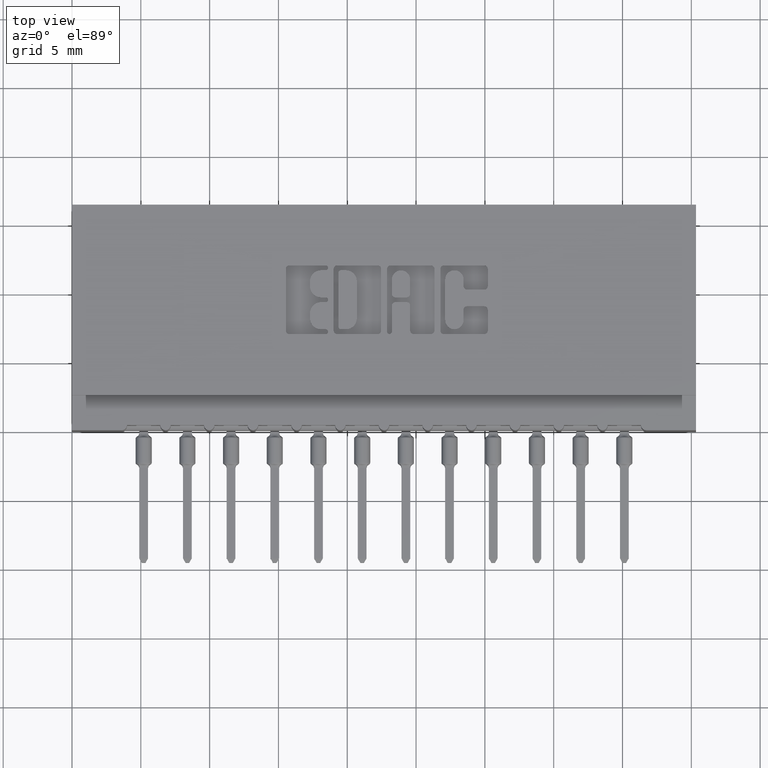
[diagram: clean part render]
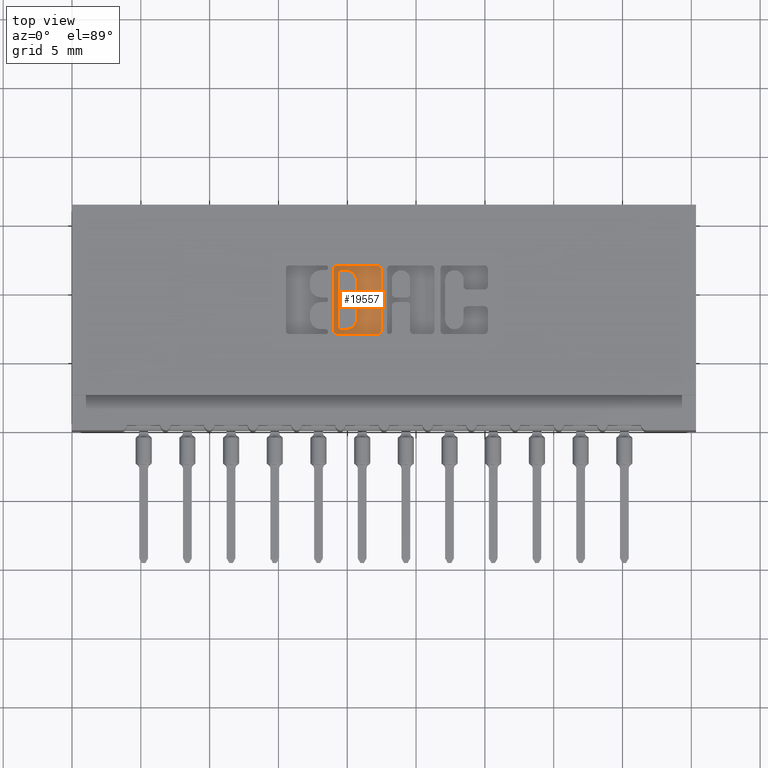
[diagram: same view with one face highlighted and labeled with its STEP entity id]
A machine part, top view. The second image highlights one B-rep face of the part: STEP entity #19557.
In plain terms, the highlighted planar face has unit normal (0, 0, 1).
Its self-contained STEP definition (entity closure, byte-faithful):
#28 = ORIENTED_EDGE ( 'NONE', *, *, #10768, .T. ) ;
#53 = DIRECTION ( 'NONE',  ( 1.000000000000000000, 0.0000000000000000000, 0.0000000000000000000 ) ) ;
#64 = CARTESIAN_POINT ( 'NONE',  ( 0.7484550397591692716, 0.0000000000000000000, -0.01000000000000000021 ) ) ;
#279 = CARTESIAN_POINT ( 'NONE',  ( 0.0000000000000000000, 0.2743432979619832568, -0.01000000000000000021 ) ) ;
#464 = DIRECTION ( 'NONE',  ( 1.000000000000000000, 0.0000000000000000000, 0.0000000000000000000 ) ) ;
#505 = DIRECTION ( 'NONE',  ( -0.0000000000000000000, 0.0000000000000000000, 1.000000000000000000 ) ) ;
#579 = DIRECTION ( 'NONE',  ( -0.0000000000000000000, 0.0000000000000000000, 1.000000000000000000 ) ) ;
#663 = DIRECTION ( 'NONE',  ( 1.000000000000000000, 0.0000000000000000000, 0.0000000000000000000 ) ) ;
#727 = DIRECTION ( 'NONE',  ( 0.0000000000000000000, -1.000000000000000000, 0.0000000000000000000 ) ) ;
#770 = VERTEX_POINT ( 'NONE', #2442 ) ;
#979 = ORIENTED_EDGE ( 'NONE', *, *, #17237, .T. ) ;
#996 = DIRECTION ( 'NONE',  ( 1.000000000000000000, 0.0000000000000000000, 0.0000000000000000000 ) ) ;
#1317 = AXIS2_PLACEMENT_3D ( 'NONE', #11979, #18652, #53 ) ;
#1403 = DIRECTION ( 'NONE',  ( 1.000000000000000000, 0.0000000000000000000, 0.0000000000000000000 ) ) ;
#1424 = FACE_BOUND ( 'NONE', #10657, .T. ) ;
#1486 = EDGE_CURVE ( 'NONE', #3264, #11279, #5967, .T. ) ;
#1504 = CARTESIAN_POINT ( 'NONE',  ( 0.7833006689826734759, 0.3194953808994845934, -0.01000000000000000021 ) ) ;
#1520 = ORIENTED_EDGE ( 'NONE', *, *, #19025, .F. ) ;
#1679 = CIRCLE ( 'NONE', #4579, 0.03141014465217194934 ) ;
#1914 = CARTESIAN_POINT ( 'NONE',  ( 0.8839112885716690071, 0.4608410318342101575, -0.01000000000000000021 ) ) ;
#1973 = CARTESIAN_POINT ( 'NONE',  ( 0.7690679471871665340, 0.4500437946100568354, -0.01000000000000000021 ) ) ;
#2029 = CARTESIAN_POINT ( 'NONE',  ( 0.0000000000000000000, 0.4706567020380511002, -0.01000000000000000021 ) ) ;
#2099 = ORIENTED_EDGE ( 'NONE', *, *, #1486, .T. ) ;
#2112 = DIRECTION ( 'NONE',  ( 1.000000000000000000, 0.0000000000000000000, 0.0000000000000000000 ) ) ;
#2360 = DIRECTION ( 'NONE',  ( -0.0000000000000000000, 0.0000000000000000000, 1.000000000000000000 ) ) ;
#2442 = CARTESIAN_POINT ( 'NONE',  ( 0.7690679471871665340, 0.4569147637527245509, -0.01000000000000000021 ) ) ;
#2487 = LINE ( 'NONE', #16538, #20894 ) ;
#2644 = VECTOR ( 'NONE', #21069, 39.37007874015748143 ) ;
#2761 = CIRCLE ( 'NONE', #11097, 0.006870969142667692972 ) ;
#2801 = VERTEX_POINT ( 'NONE', #13797 ) ;
#3264 = VERTEX_POINT ( 'NONE', #5041 ) ;
#3408 = VERTEX_POINT ( 'NONE', #7620 ) ;
#3524 = CARTESIAN_POINT ( 'NONE',  ( 0.7582707099629760750, 0.2743432979619832568, -0.01000000000000000021 ) ) ;
#3636 = CARTESIAN_POINT ( 'NONE',  ( 0.7690679471871619821, 0.2949562053899775771, -0.01000000000000000021 ) ) ;
#3751 = CARTESIAN_POINT ( 'NONE',  ( 0.7690679471871619821, 0.2880852362473143025, -0.01000000000000000021 ) ) ;
#3798 = DIRECTION ( 'NONE',  ( 1.000000000000000000, 0.0000000000000000000, 0.0000000000000000000 ) ) ;
#4189 = CIRCLE ( 'NONE', #7078, 0.009815670203840902788 ) ;
#4284 = EDGE_CURVE ( 'NONE', #3264, #16062, #8082, .T. ) ;
#4309 = EDGE_CURVE ( 'NONE', #19083, #2801, #16191, .T. ) ;
#4579 = AXIS2_PLACEMENT_3D ( 'NONE', #16089, #5553, #5345 ) ;
#4994 = ORIENTED_EDGE ( 'NONE', *, *, #21504, .T. ) ;
#5041 = CARTESIAN_POINT ( 'NONE',  ( 0.7621969780444988185, 0.2949562053899775771, -0.01000000000000000021 ) ) ;
#5143 = CARTESIAN_POINT ( 'NONE',  ( 0.8147108136348436558, 0.4255046191005526501, -0.01000000000000000021 ) ) ;
#5345 = DIRECTION ( 'NONE',  ( 1.000000000000000000, 0.0000000000000000000, 0.0000000000000000000 ) ) ;
#5411 = VERTEX_POINT ( 'NONE', #1914 ) ;
#5553 = DIRECTION ( 'NONE',  ( -0.0000000000000000000, 0.0000000000000000000, 1.000000000000000000 ) ) ;
#5638 = ORIENTED_EDGE ( 'NONE', *, *, #10851, .F. ) ;
#5967 = LINE ( 'NONE', #12899, #12843 ) ;
#6101 = DIRECTION ( 'NONE',  ( 0.0000000000000000000, -1.000000000000000000, 0.0000000000000000000 ) ) ;
#6308 = VERTEX_POINT ( 'NONE', #14537 ) ;
#6339 = CIRCLE ( 'NONE', #19722, 0.009815670203806754757 ) ;
#6456 = DIRECTION ( 'NONE',  ( 1.000000000000000000, 0.0000000000000000000, 0.0000000000000000000 ) ) ;
#6466 = CIRCLE ( 'NONE', #19139, 0.009815670203806891800 ) ;
#6676 = AXIS2_PLACEMENT_3D ( 'NONE', #1504, #8427, #1403 ) ;
#7078 = AXIS2_PLACEMENT_3D ( 'NONE', #21645, #11332, #6456 ) ;
#7170 = AXIS2_PLACEMENT_3D ( 'NONE', #17912, #579, #464 ) ;
#7192 = DIRECTION ( 'NONE',  ( -0.0000000000000000000, 0.0000000000000000000, 1.000000000000000000 ) ) ;
#7399 = DIRECTION ( 'NONE',  ( -0.0000000000000000000, 0.0000000000000000000, 1.000000000000000000 ) ) ;
#7493 = CARTESIAN_POINT ( 'NONE',  ( 0.8147108136348436558, 0.3194953808994845934, -0.01000000000000000021 ) ) ;
#7620 = CARTESIAN_POINT ( 'NONE',  ( 0.7833006689826734759, 0.2880852362473143025, -0.01000000000000000021 ) ) ;
#8082 = CIRCLE ( 'NONE', #8438, 0.006870969142663185293 ) ;
#8337 = ORIENTED_EDGE ( 'NONE', *, *, #17315, .F. ) ;
#8427 = DIRECTION ( 'NONE',  ( -0.0000000000000000000, 0.0000000000000000000, 1.000000000000000000 ) ) ;
#8438 = AXIS2_PLACEMENT_3D ( 'NONE', #3636, #2360, #663 ) ;
#8628 = DIRECTION ( 'NONE',  ( 0.0000000000000000000, 1.000000000000000000, -0.0000000000000000000 ) ) ;
#8816 = ORIENTED_EDGE ( 'NONE', *, *, #13688, .T. ) ;
#9190 = CIRCLE ( 'NONE', #6676, 0.03141014465217017299 ) ;
#9580 = VERTEX_POINT ( 'NONE', #20752 ) ;
#9832 = VERTEX_POINT ( 'NONE', #7493 ) ;
#9886 = ORIENTED_EDGE ( 'NONE', *, *, #18274, .T. ) ;
#10203 = LINE ( 'NONE', #13731, #22339 ) ;
#10657 = EDGE_LOOP ( 'NONE', ( #5638, #16391, #1520, #21511, #8337, #979, #17045, #2099 ) ) ;
#10688 = CARTESIAN_POINT ( 'NONE',  ( 0.7833006689826780278, 0.4569147637527245509, -0.01000000000000000021 ) ) ;
#10768 = EDGE_CURVE ( 'NONE', #13780, #14132, #15916, .T. ) ;
#10851 = EDGE_CURVE ( 'NONE', #770, #11279, #2761, .T. ) ;
#10932 = ORIENTED_EDGE ( 'NONE', *, *, #16957, .T. ) ;
#11097 = AXIS2_PLACEMENT_3D ( 'NONE', #1973, #7192, #16008 ) ;
#11244 = DIRECTION ( 'NONE',  ( 1.000000000000000000, 0.0000000000000000000, 0.0000000000000000000 ) ) ;
#11279 = VERTEX_POINT ( 'NONE', #19931 ) ;
#11332 = DIRECTION ( 'NONE',  ( -0.0000000000000000000, 0.0000000000000000000, 1.000000000000000000 ) ) ;
#11642 = FACE_OUTER_BOUND ( 'NONE', #19919, .T. ) ;
#11754 = VECTOR ( 'NONE', #727, 39.37007874015748143 ) ;
#11979 = CARTESIAN_POINT ( 'NONE',  ( 0.0000000000000000000, 0.0000000000000000000, -0.01000000000000000021 ) ) ;
#12843 = VECTOR ( 'NONE', #19355, 39.37007874015748143 ) ;
#12899 = CARTESIAN_POINT ( 'NONE',  ( 0.7621969780444988185, 0.0000000000000000000, -0.01000000000000000021 ) ) ;
#12915 = ORIENTED_EDGE ( 'NONE', *, *, #4309, .T. ) ;
#12994 = EDGE_CURVE ( 'NONE', #13615, #9832, #14711, .T. ) ;
#13514 = VERTEX_POINT ( 'NONE', #18303 ) ;
#13615 = VERTEX_POINT ( 'NONE', #5143 ) ;
#13654 = CARTESIAN_POINT ( 'NONE',  ( 0.0000000000000000000, 0.2880852362473143025, -0.01000000000000000021 ) ) ;
#13688 = EDGE_CURVE ( 'NONE', #14132, #6308, #6466, .T. ) ;
#13731 = CARTESIAN_POINT ( 'NONE',  ( 0.8839112885716690071, 0.0000000000000000000, -0.01000000000000000021 ) ) ;
#13780 = VERTEX_POINT ( 'NONE', #3524 ) ;
#13797 = CARTESIAN_POINT ( 'NONE',  ( 0.7582707099630101588, 0.4706567020380511002, -0.01000000000000000021 ) ) ;
#14132 = VERTEX_POINT ( 'NONE', #21637 ) ;
#14150 = EDGE_CURVE ( 'NONE', #770, #20058, #2487, .T. ) ;
#14537 = CARTESIAN_POINT ( 'NONE',  ( 0.8839112885716690071, 0.2841589681657900046, -0.01000000000000000021 ) ) ;
#14711 = LINE ( 'NONE', #21632, #17659 ) ;
#15283 = EDGE_CURVE ( 'NONE', #5411, #19083, #16951, .T. ) ;
#15432 = VECTOR ( 'NONE', #3798, 39.37007874015748143 ) ;
#15604 = LINE ( 'NONE', #64, #11754 ) ;
#15916 = LINE ( 'NONE', #279, #15432 ) ;
#16008 = DIRECTION ( 'NONE',  ( 1.000000000000000000, 0.0000000000000000000, 0.0000000000000000000 ) ) ;
#16062 = VERTEX_POINT ( 'NONE', #3751 ) ;
#16089 = CARTESIAN_POINT ( 'NONE',  ( 0.7833006689826716995, 0.4255046191005526501, -0.01000000000000000021 ) ) ;
#16191 = LINE ( 'NONE', #2029, #2644 ) ;
#16391 = ORIENTED_EDGE ( 'NONE', *, *, #14150, .T. ) ;
#16444 = VECTOR ( 'NONE', #18630, 39.37007874015748143 ) ;
#16510 = ORIENTED_EDGE ( 'NONE', *, *, #15283, .T. ) ;
#16538 = CARTESIAN_POINT ( 'NONE',  ( 0.0000000000000000000, 0.4569147637527245509, -0.01000000000000000021 ) ) ;
#16951 = CIRCLE ( 'NONE', #7170, 0.009815670203841039831 ) ;
#16957 = EDGE_CURVE ( 'NONE', #13514, #9580, #15604, .T. ) ;
#17045 = ORIENTED_EDGE ( 'NONE', *, *, #4284, .F. ) ;
#17237 = EDGE_CURVE ( 'NONE', #3408, #16062, #18957, .T. ) ;
#17315 = EDGE_CURVE ( 'NONE', #3408, #9832, #9190, .T. ) ;
#17659 = VECTOR ( 'NONE', #6101, 39.37007874015748143 ) ;
#17688 = CARTESIAN_POINT ( 'NONE',  ( 0.8740956183678961766, 0.4706567020380511002, -0.01000000000000000021 ) ) ;
#17912 = CARTESIAN_POINT ( 'NONE',  ( 0.8740956183678280089, 0.4608410318342100465, -0.01000000000000000021 ) ) ;
#18274 = EDGE_CURVE ( 'NONE', #9580, #13780, #6339, .T. ) ;
#18303 = CARTESIAN_POINT ( 'NONE',  ( 0.7484550397591692716, 0.4608410318342101575, -0.01000000000000000021 ) ) ;
#18532 = PLANE ( 'NONE',  #1317 ) ;
#18630 = DIRECTION ( 'NONE',  ( -1.000000000000000000, 0.0000000000000000000, 0.0000000000000000000 ) ) ;
#18652 = DIRECTION ( 'NONE',  ( -0.0000000000000000000, 0.0000000000000000000, 1.000000000000000000 ) ) ;
#18957 = LINE ( 'NONE', #13654, #16444 ) ;
#19025 = EDGE_CURVE ( 'NONE', #13615, #20058, #1679, .T. ) ;
#19083 = VERTEX_POINT ( 'NONE', #17688 ) ;
#19139 = AXIS2_PLACEMENT_3D ( 'NONE', #19952, #7399, #11244 ) ;
#19355 = DIRECTION ( 'NONE',  ( 0.0000000000000000000, 1.000000000000000000, -0.0000000000000000000 ) ) ;
#19557 = ADVANCED_FACE ( 'NONE', ( #1424, #11642 ), #18532, .T. ) ;
#19629 = ORIENTED_EDGE ( 'NONE', *, *, #20211, .T. ) ;
#19652 = CARTESIAN_POINT ( 'NONE',  ( 0.7582707099629760750, 0.2841589681657900046, -0.01000000000000000021 ) ) ;
#19722 = AXIS2_PLACEMENT_3D ( 'NONE', #19652, #505, #2112 ) ;
#19919 = EDGE_LOOP ( 'NONE', ( #4994, #16510, #12915, #19629, #10932, #9886, #28, #8816 ) ) ;
#19931 = CARTESIAN_POINT ( 'NONE',  ( 0.7621969780444988185, 0.4500437946100568354, -0.01000000000000000021 ) ) ;
#19952 = CARTESIAN_POINT ( 'NONE',  ( 0.8740956183678620928, 0.2841589681657900046, -0.01000000000000000021 ) ) ;
#20058 = VERTEX_POINT ( 'NONE', #10688 ) ;
#20211 = EDGE_CURVE ( 'NONE', #2801, #13514, #4189, .T. ) ;
#20752 = CARTESIAN_POINT ( 'NONE',  ( 0.7484550397591692716, 0.2841589681657900046, -0.01000000000000000021 ) ) ;
#20894 = VECTOR ( 'NONE', #996, 39.37007874015748143 ) ;
#21069 = DIRECTION ( 'NONE',  ( -1.000000000000000000, 0.0000000000000000000, 0.0000000000000000000 ) ) ;
#21504 = EDGE_CURVE ( 'NONE', #6308, #5411, #10203, .T. ) ;
#21511 = ORIENTED_EDGE ( 'NONE', *, *, #12994, .T. ) ;
#21632 = CARTESIAN_POINT ( 'NONE',  ( 0.8147108136348436558, 0.0000000000000000000, -0.01000000000000000021 ) ) ;
#21637 = CARTESIAN_POINT ( 'NONE',  ( 0.8740956183678620928, 0.2743432979619832568, -0.01000000000000000021 ) ) ;
#21645 = CARTESIAN_POINT ( 'NONE',  ( 0.7582707099630101588, 0.4608410318342101575, -0.01000000000000000021 ) ) ;
#22339 = VECTOR ( 'NONE', #8628, 39.37007874015748143 ) ;